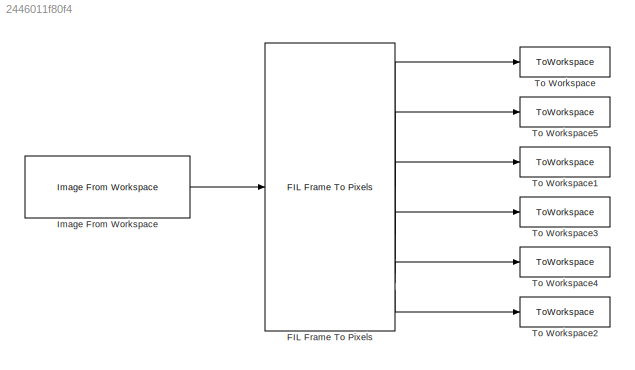
MODEL slx_2446011f80f4
KIND model
CONFIG AbsTol = auto
CONFIG EnableMultiTasking = off
CONFIG FixedStep = auto
CONFIG InitFcn = AXI_video_stream_sig_gen_setup
CONFIG MaxStep = auto
CONFIG MinStep = auto
CONFIG PreLoadFcn = AXI_video_stream_sig_gen_setup
CONFIG RelTol = 1e-3
CONFIG SampleTimeConstraint = Unconstrained
CONFIG SolverName = VariableStepAuto
CONFIG StartFcn = AXI_video_stream_sig_gen_setup
CONFIG StartTime = 0.0
CONFIG StopFcn = signal_set = out;\n\nsave('AXI_video_stream_sig.mat', '-v7.3', 'signal_set')
CONFIG StopTime = gen_duration
BLOCK [Reference] FIL Frame To Pixels  REF=visionhdlio/FIL Frame To Pixels
  SourceBlock = visionhdlio/FIL Frame To Pixels
  SourceType = FIL Frame To Pixels
BLOCK [Reference] Image From Workspace  REF=visionsources/Image From Workspace
  SourceBlock = visionsources/Image From Workspace
  SourceType = Image From Workspace
  Tag = vipblks_nd
BLOCK [ToWorkspace] To Workspace
  FixptAsFi = on
  MaxDataPoints = inf
  SampleTime = -1
  Save2DSignal = 2-D array (concatenate along first dimension)
  VariableName = gen_data_out
BLOCK [ToWorkspace] To Workspace1
  FixptAsFi = on
  MaxDataPoints = inf
  SampleTime = -1
  Save2DSignal = 2-D array (concatenate along first dimension)
  VariableName = gen_eol_out
BLOCK [ToWorkspace] To Workspace2
  FixptAsFi = on
  MaxDataPoints = inf
  SampleTime = -1
  Save2DSignal = 2-D array (concatenate along first dimension)
  VariableName = gen_valid_out
BLOCK [ToWorkspace] To Workspace3
  FixptAsFi = on
  MaxDataPoints = inf
  SampleTime = -1
  Save2DSignal = 2-D array (concatenate along first dimension)
  VariableName = gen_sof_out
BLOCK [ToWorkspace] To Workspace4
  FixptAsFi = on
  MaxDataPoints = inf
  SampleTime = -1
  Save2DSignal = 2-D array (concatenate along first dimension)
  VariableName = gen_vEnd_out
BLOCK [ToWorkspace] To Workspace5
  FixptAsFi = on
  MaxDataPoints = inf
  SampleTime = -1
  Save2DSignal = 2-D array (concatenate along first dimension)
  VariableName = gen_hStart_out
LINE FIL Frame To Pixels:1 -> To Workspace:1
LINE FIL Frame To Pixels:2 -> To Workspace5:1
LINE FIL Frame To Pixels:3 -> To Workspace1:1
LINE FIL Frame To Pixels:4 -> To Workspace3:1
LINE FIL Frame To Pixels:5 -> To Workspace4:1
LINE FIL Frame To Pixels:6 -> To Workspace2:1
LINE Image From Workspace:1 -> FIL Frame To Pixels:1
